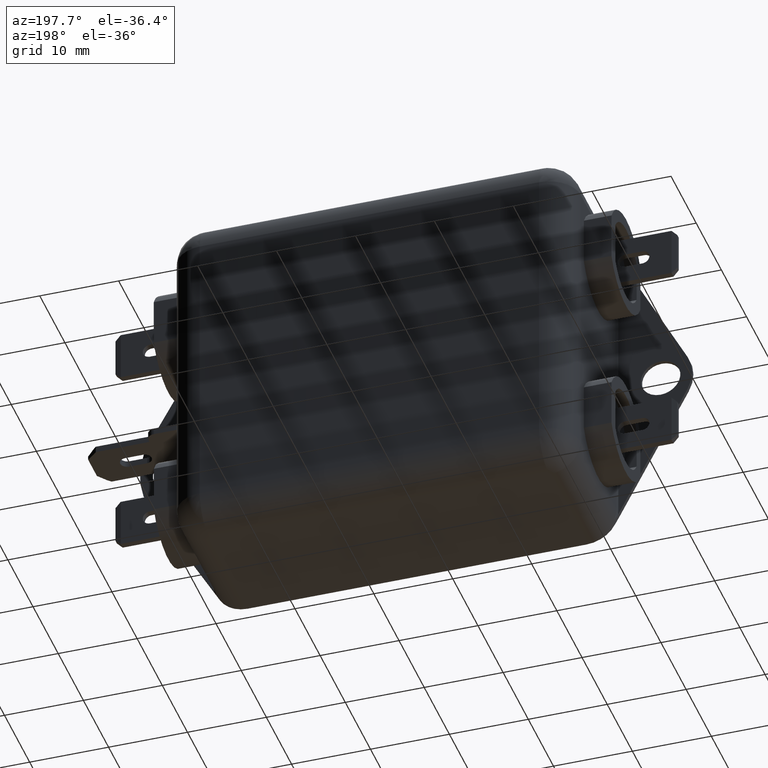
[diagram: clean part render]
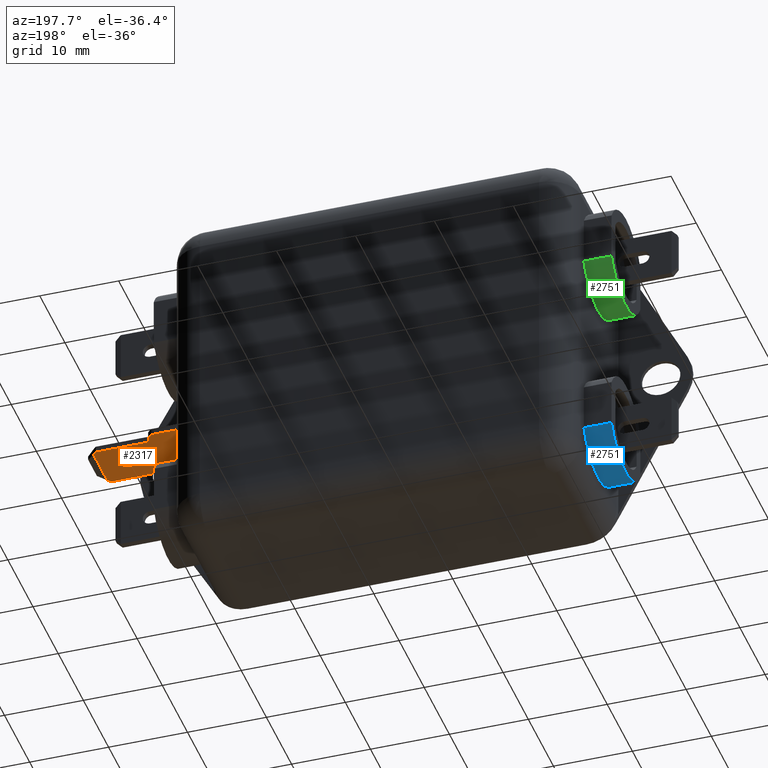
[diagram: same view with three faces highlighted in distinct colors, each labeled with its STEP entity id]
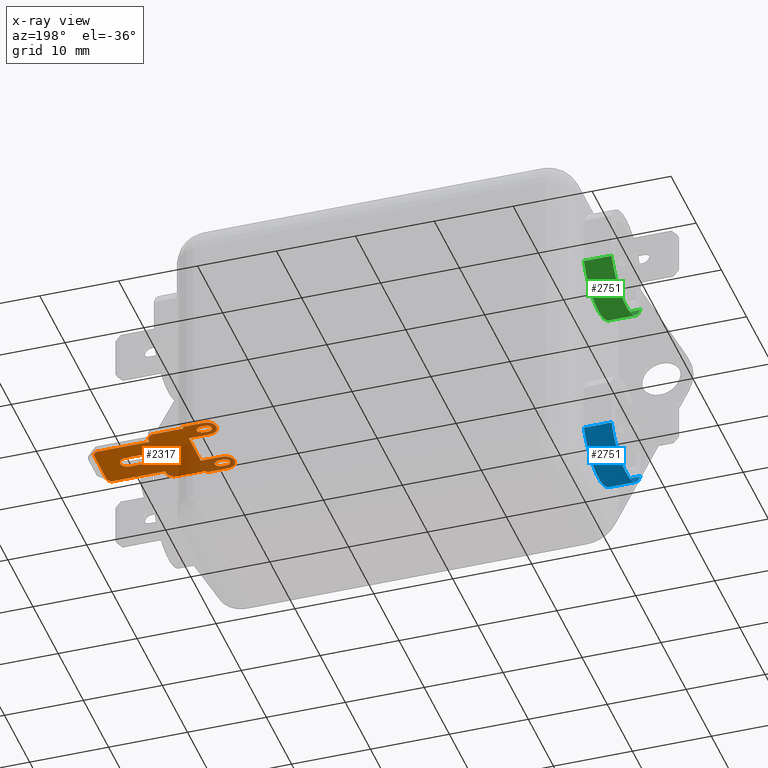
[diagram: x-ray of the same camera — body ghosted, the three highlighted faces saturated]
A machine part, auxiliary view with three faces highlighted in distinct colors.
The next image is the same camera in x-ray (body ghosted, the three faces saturated) — at least one of them is partly hidden behind the body in this view.
Their STEP definitions:

[orange] entity #2317 — the highlighted planar face has unit normal (0, 0, -1).
#2317=ADVANCED_FACE('NONE',(#5225,#5226,#5227,#5228),#5229,.T.);
#2323=EDGE_CURVE('NONE',#5237,#5238,#5239,.T.);
#2407=EDGE_CURVE('NONE',#5238,#5362,#5363,.T.);
#2413=EDGE_CURVE('NONE',#5367,#5370,#5371,.T.);
#2419=EDGE_CURVE('NONE',#5375,#5378,#5379,.T.);
#2423=EDGE_CURVE('NONE',#5383,#5384,#5385,.T.);
#2429=EDGE_CURVE('NONE',#5391,#5392,#5393,.T.);
#2435=EDGE_CURVE('NONE',#5399,#5400,#5401,.T.);
#2441=EDGE_CURVE('NONE',#5407,#5408,#5409,.T.);
#2447=EDGE_CURVE('NONE',#5415,#5416,#5417,.T.);
#2453=EDGE_CURVE('NONE',#5362,#5415,#5423,.T.);
#2455=EDGE_CURVE('NONE',#5416,#5391,#5425,.T.);
#2457=EDGE_CURVE('NONE',#5427,#5428,#5429,.T.);
#2463=EDGE_CURVE('NONE',#5378,#5427,#5435,.T.);
#2467=EDGE_CURVE('NONE',#5437,#5367,#5440,.T.);
#2469=EDGE_CURVE('NONE',#5442,#5437,#5443,.T.);
#2479=EDGE_CURVE('NONE',#5455,#5456,#5457,.T.);
#2485=EDGE_CURVE('NONE',#5463,#5442,#5464,.T.);
#2489=EDGE_CURVE('NONE',#5408,#5399,#5468,.T.);
#2491=EDGE_CURVE('NONE',#5470,#5407,#5471,.T.);
#2495=EDGE_CURVE('NONE',#5475,#5470,#5476,.T.);
#2499=EDGE_CURVE('NONE',#5480,#5475,#5481,.T.);
#2503=EDGE_CURVE('NONE',#5392,#5480,#5485,.T.);
#2511=EDGE_CURVE('NONE',#5495,#5496,#5497,.T.);
#2517=EDGE_CURVE('NONE',#5503,#5383,#5504,.T.);
#2521=EDGE_CURVE('NONE',#5508,#5509,#5510,.T.);
#2527=EDGE_CURVE('NONE',#5428,#5516,#5517,.T.);
#2531=EDGE_CURVE('NONE',#5370,#5463,#5521,.T.);
#2537=EDGE_CURVE('NONE',#5523,#5526,#5529,.T.);
#2539=EDGE_CURVE('NONE',#5496,#5455,#5531,.T.);
#2541=EDGE_CURVE('NONE',#5526,#5237,#5533,.T.);
#2543=EDGE_CURVE('NONE',#5456,#5503,#5535,.T.);
#2545=EDGE_CURVE('NONE',#5537,#5508,#5538,.T.);
#2549=EDGE_CURVE('NONE',#5542,#5537,#5543,.T.);
#2553=EDGE_CURVE('NONE',#5384,#5547,#5548,.T.);
#2559=EDGE_CURVE('NONE',#5509,#5552,#5555,.T.);
#2561=EDGE_CURVE('NONE',#5547,#5523,#5557,.T.);
#2563=EDGE_CURVE('NONE',#5516,#5375,#5559,.T.);
#2565=EDGE_CURVE('NONE',#5400,#5495,#5561,.T.);
#2567=EDGE_CURVE('NONE',#5552,#5542,#5563,.T.);
#5225=FACE_OUTER_BOUND('',#9181,.T.);
#5226=FACE_BOUND('',#9182,.T.);
#5227=FACE_BOUND('',#9183,.T.);
#5228=FACE_BOUND('',#9184,.T.);
#5229=PLANE('',#9185);
#5237=VERTEX_POINT('NONE',#9194);
#5238=VERTEX_POINT('NONE',#9195);
#5239=LINE('',#9196,#9197);
#5362=VERTEX_POINT('NONE',#9388);
#5363=LINE('',#9389,#9390);
#5367=VERTEX_POINT('NONE',#9397);
#5370=VERTEX_POINT('NONE',#9402);
#5371=CIRCLE('',#9403,0.6);
#5375=VERTEX_POINT('NONE',#9410);
#5378=VERTEX_POINT('NONE',#9415);
#5379=CIRCLE('',#9416,0.9);
#5383=VERTEX_POINT('NONE',#9423);
#5384=VERTEX_POINT('NONE',#9424);
#5385=LINE('',#9425,#9426);
#5391=VERTEX_POINT('NONE',#9437);
#5392=VERTEX_POINT('NONE',#9438);
#5393=LINE('',#9439,#9440);
#5399=VERTEX_POINT('NONE',#9451);
#5400=VERTEX_POINT('NONE',#9452);
#5401=CIRCLE('',#9453,1.2);
#5407=VERTEX_POINT('NONE',#9464);
#5408=VERTEX_POINT('NONE',#9465);
#5409=LINE('',#9466,#9467);
#5415=VERTEX_POINT('NONE',#9478);
#5416=VERTEX_POINT('NONE',#9479);
#5417=LINE('',#9480,#9481);
#5423=CIRCLE('',#9492,1.0);
#5425=LINE('',#9495,#9496);
#5427=VERTEX_POINT('NONE',#9499);
#5428=VERTEX_POINT('NONE',#9500);
#5429=CIRCLE('',#9501,0.9);
#5435=LINE('',#9512,#9513);
#5437=VERTEX_POINT('NONE',#9516);
#5440=CIRCLE('',#9521,0.6);
#5442=VERTEX_POINT('NONE',#9524);
#5443=LINE('',#9525,#9526);
#5455=VERTEX_POINT('NONE',#9547);
#5456=VERTEX_POINT('NONE',#9548);
#5457=LINE('',#9549,#9550);
#5463=VERTEX_POINT('NONE',#9561);
#5464=CIRCLE('',#9562,0.6);
#5468=LINE('',#9569,#9570);
#5470=VERTEX_POINT('NONE',#9573);
#5471=LINE('',#9574,#9575);
#5475=VERTEX_POINT('NONE',#9582);
#5476=CIRCLE('',#9583,1.200000033207);
#5480=VERTEX_POINT('NONE',#9590);
#5481=LINE('',#9591,#9592);
#5485=CIRCLE('',#9599,1.2);
#5495=VERTEX_POINT('NONE',#9616);
#5496=VERTEX_POINT('NONE',#9617);
#5497=CIRCLE('',#9618,1.2);
#5503=VERTEX_POINT('NONE',#9629);
#5504=CIRCLE('',#9630,1.0);
#5508=VERTEX_POINT('NONE',#9637);
#5509=VERTEX_POINT('NONE',#9638);
#5510=LINE('',#9639,#9640);
#5516=VERTEX_POINT('NONE',#9651);
#5517=LINE('',#9652,#9653);
#5521=LINE('',#9660,#9661);
#5523=VERTEX_POINT('NONE',#9664);
#5526=VERTEX_POINT('NONE',#9669);
#5529=LINE('',#9674,#9675);
#5531=LINE('',#9678,#9679);
#5533=LINE('',#9682,#9683);
#5535=LINE('',#9686,#9687);
#5537=VERTEX_POINT('NONE',#9690);
#5538=CIRCLE('',#9691,0.6);
#5542=VERTEX_POINT('NONE',#9698);
#5543=LINE('',#9699,#9700);
#5547=VERTEX_POINT('NONE',#9707);
#5548=LINE('',#9708,#9709);
#5552=VERTEX_POINT('NONE',#9716);
#5555=CIRCLE('',#9721,0.6);
#5557=LINE('',#9724,#9725);
#5559=CIRCLE('',#9728,0.9);
#5561=LINE('',#9731,#9732);
#5563=CIRCLE('',#9735,0.6);
#9181=EDGE_LOOP('',(#14323,#14324,#14325,#14326,#14327,#14328,#14329,#14330,#14331,#14332,#14333,#14334,#14335,#14336,#14337,#14338,#14339,#14340,#14341,#14342,#14343,#14344,#14345,#14346));
#9182=EDGE_LOOP('',(#14347,#14348,#14349,#14350,#14351));
#9183=EDGE_LOOP('',(#14352,#14353,#14354,#14355,#14356));
#9184=EDGE_LOOP('',(#14357,#14358,#14359,#14360,#14361));
#9185=AXIS2_PLACEMENT_3D('',#14362,#14363,#14364);
#9194=CARTESIAN_POINT('',(-4.1,3.15,0.0));
#9195=CARTESIAN_POINT('',(2.7,3.15,0.0));
#9196=CARTESIAN_POINT('',(-4.1,3.15,0.0));
#9197=VECTOR('',#14381,1.0);
#9388=CARTESIAN_POINT('',(2.7,3.5,0.0));
#9389=CARTESIAN_POINT('',(2.7,3.15,0.0));
#9390=VECTOR('',#14453,1.0);
#9397=CARTESIAN_POINT('',(8.85,-3.6,0.0));
#9402=CARTESIAN_POINT('',(9.45,-3.0,0.0));
#9403=AXIS2_PLACEMENT_3D('',#14456,#14457,#14458);
#9410=CARTESIAN_POINT('',(-2.0,0.0,0.0));
#9415=CARTESIAN_POINT('',(-1.1,0.9,0.0));
#9416=AXIS2_PLACEMENT_3D('',#14461,#14462,#14463);
#9423=CARTESIAN_POINT('',(2.7,-3.5,0.0));
#9424=CARTESIAN_POINT('',(2.7,-3.15,0.0));
#9425=CARTESIAN_POINT('',(2.7,-3.5,0.0));
#9426=VECTOR('',#14465,1.0);
#9437=CARTESIAN_POINT('',(7.45,4.85,0.0));
#9438=CARTESIAN_POINT('',(10.15,4.85,0.0));
#9439=CARTESIAN_POINT('',(7.45,4.85,0.0));
#9440=VECTOR('',#14468,1.0);
#9451=CARTESIAN_POINT('',(10.15,-2.4,0.0));
#9452=CARTESIAN_POINT('',(11.35,-3.6,0.0));
#9453=AXIS2_PLACEMENT_3D('',#14471,#14472,#14473);
#9464=CARTESIAN_POINT('',(7.45,2.399999966793,0.0));
#9465=CARTESIAN_POINT('',(7.45,-2.4,0.0));
#9466=CARTESIAN_POINT('',(7.45,2.399999966793,0.0));
#9467=VECTOR('',#14476,1.0);
#9478=CARTESIAN_POINT('',(3.7,4.5,0.0));
#9479=CARTESIAN_POINT('',(7.45,4.5,0.0));
#9480=CARTESIAN_POINT('',(3.7,4.5,0.0));
#9481=VECTOR('',#14479,1.0);
#9492=AXIS2_PLACEMENT_3D('',#14482,#14483,#14484);
#9495=CARTESIAN_POINT('',(7.45,4.5,0.0));
#9496=VECTOR('',#14485,1.0);
#9499=CARTESIAN_POINT('',(1.1,0.9,0.0));
#9500=CARTESIAN_POINT('',(1.1,-0.9,0.0));
#9501=AXIS2_PLACEMENT_3D('',#14486,#14487,#14488);
#9512=CARTESIAN_POINT('',(1.1,0.9,0.0));
#9513=VECTOR('',#14491,1.0);
#9516=CARTESIAN_POINT('',(9.45,-4.2,0.0));
#9521=AXIS2_PLACEMENT_3D('',#14493,#14494,#14495);
#9524=CARTESIAN_POINT('',(10.15,-4.2,0.0));
#9525=CARTESIAN_POINT('',(9.45,-4.2,0.0));
#9526=VECTOR('',#14496,1.0);
#9547=CARTESIAN_POINT('',(7.45,-4.85,0.0));
#9548=CARTESIAN_POINT('',(7.45,-4.5,0.0));
#9549=CARTESIAN_POINT('',(7.45,-4.85,0.0));
#9550=VECTOR('',#14501,1.0);
#9561=CARTESIAN_POINT('',(10.15,-3.0,0.0));
#9562=AXIS2_PLACEMENT_3D('',#14504,#14505,#14506);
#9569=CARTESIAN_POINT('',(7.45,-2.4,0.0));
#9570=VECTOR('',#14508,1.0);
#9573=CARTESIAN_POINT('',(10.149999966793,2.399999966793,0.0));
#9574=CARTESIAN_POINT('',(10.149999966793,2.399999966793,0.0));
#9575=VECTOR('',#14509,1.0);
#9582=CARTESIAN_POINT('',(11.35,3.6,0.0));
#9583=AXIS2_PLACEMENT_3D('',#14511,#14512,#14513);
#9590=CARTESIAN_POINT('',(11.35,3.65,0.0));
#9591=CARTESIAN_POINT('',(11.35,3.65,0.0));
#9592=VECTOR('',#14515,1.0);
#9599=AXIS2_PLACEMENT_3D('',#14517,#14518,#14519);
#9616=CARTESIAN_POINT('',(11.35,-3.65,0.0));
#9617=CARTESIAN_POINT('',(10.15,-4.85,0.0));
#9618=AXIS2_PLACEMENT_3D('',#14523,#14524,#14525);
#9629=CARTESIAN_POINT('',(3.7,-4.5,0.0));
#9630=AXIS2_PLACEMENT_3D('',#14528,#14529,#14530);
#9637=CARTESIAN_POINT('',(10.149999966793,3.0,0.0));
#9638=CARTESIAN_POINT('',(9.45,3.0,0.0));
#9639=CARTESIAN_POINT('',(9.45,3.0,0.0));
#9640=VECTOR('',#14532,1.0);
#9651=CARTESIAN_POINT('',(-1.1,-0.9,0.0));
#9652=CARTESIAN_POINT('',(-1.1,-0.9,0.0));
#9653=VECTOR('',#14535,1.0);
#9660=CARTESIAN_POINT('',(10.15,-3.0,0.0));
#9661=VECTOR('',#14537,1.0);
#9664=CARTESIAN_POINT('',(-4.51421356237308,-2.73578643762693,0.0));
#9669=CARTESIAN_POINT('',(-4.51421356237308,2.73578643762693,0.0));
#9674=CARTESIAN_POINT('',(-4.51421356237308,3.5,0.0));
#9675=VECTOR('',#14540,1.0);
#9678=CARTESIAN_POINT('',(10.15,-4.85,0.0));
#9679=VECTOR('',#14541,1.0);
#9682=CARTESIAN_POINT('',(-5.5142135623731,1.73578643762691,0.0));
#9683=VECTOR('',#14542,1.0);
#9686=CARTESIAN_POINT('',(7.45,-4.5,0.0));
#9687=VECTOR('',#14543,1.0);
#9690=CARTESIAN_POINT('',(10.149999966793,4.2,0.0));
#9691=AXIS2_PLACEMENT_3D('',#14544,#14545,#14546);
#9698=CARTESIAN_POINT('',(9.45,4.2,0.0));
#9699=CARTESIAN_POINT('',(10.149999966793,4.2,0.0));
#9700=VECTOR('',#14548,1.0);
#9707=CARTESIAN_POINT('',(-4.1,-3.15,0.0));
#9708=CARTESIAN_POINT('',(2.7,-3.15,0.0));
#9709=VECTOR('',#14550,1.0);
#9716=CARTESIAN_POINT('',(8.85,3.6,0.0));
#9721=AXIS2_PLACEMENT_3D('',#14553,#14554,#14555);
#9724=CARTESIAN_POINT('',(-4.1,-3.15,0.0));
#9725=VECTOR('',#14556,1.0);
#9728=AXIS2_PLACEMENT_3D('',#14557,#14558,#14559);
#9731=CARTESIAN_POINT('',(11.35,-3.6,0.0));
#9732=VECTOR('',#14560,1.0);
#9735=AXIS2_PLACEMENT_3D('',#14561,#14562,#14563);
#14323=ORIENTED_EDGE('',*,*,#2561,.T.);
#14324=ORIENTED_EDGE('',*,*,#2537,.T.);
#14325=ORIENTED_EDGE('',*,*,#2541,.T.);
#14326=ORIENTED_EDGE('',*,*,#2323,.T.);
#14327=ORIENTED_EDGE('',*,*,#2407,.T.);
#14328=ORIENTED_EDGE('',*,*,#2453,.T.);
#14329=ORIENTED_EDGE('',*,*,#2447,.T.);
#14330=ORIENTED_EDGE('',*,*,#2455,.T.);
#14331=ORIENTED_EDGE('',*,*,#2429,.T.);
#14332=ORIENTED_EDGE('',*,*,#2503,.T.);
#14333=ORIENTED_EDGE('',*,*,#2499,.T.);
#14334=ORIENTED_EDGE('',*,*,#2495,.T.);
#14335=ORIENTED_EDGE('',*,*,#2491,.T.);
#14336=ORIENTED_EDGE('',*,*,#2441,.T.);
#14337=ORIENTED_EDGE('',*,*,#2489,.T.);
#14338=ORIENTED_EDGE('',*,*,#2435,.T.);
#14339=ORIENTED_EDGE('',*,*,#2565,.T.);
#14340=ORIENTED_EDGE('',*,*,#2511,.T.);
#14341=ORIENTED_EDGE('',*,*,#2539,.T.);
#14342=ORIENTED_EDGE('',*,*,#2479,.T.);
#14343=ORIENTED_EDGE('',*,*,#2543,.T.);
#14344=ORIENTED_EDGE('',*,*,#2517,.T.);
#14345=ORIENTED_EDGE('',*,*,#2423,.T.);
#14346=ORIENTED_EDGE('',*,*,#2553,.T.);
#14347=ORIENTED_EDGE('',*,*,#2467,.F.);
#14348=ORIENTED_EDGE('',*,*,#2469,.F.);
#14349=ORIENTED_EDGE('',*,*,#2485,.F.);
#14350=ORIENTED_EDGE('',*,*,#2531,.F.);
#14351=ORIENTED_EDGE('',*,*,#2413,.F.);
#14352=ORIENTED_EDGE('',*,*,#2563,.F.);
#14353=ORIENTED_EDGE('',*,*,#2527,.F.);
#14354=ORIENTED_EDGE('',*,*,#2457,.F.);
#14355=ORIENTED_EDGE('',*,*,#2463,.F.);
#14356=ORIENTED_EDGE('',*,*,#2419,.F.);
#14357=ORIENTED_EDGE('',*,*,#2559,.F.);
#14358=ORIENTED_EDGE('',*,*,#2521,.F.);
#14359=ORIENTED_EDGE('',*,*,#2545,.F.);
#14360=ORIENTED_EDGE('',*,*,#2549,.F.);
#14361=ORIENTED_EDGE('',*,*,#2567,.F.);
#14362=CARTESIAN_POINT('',(3.7,3.5,0.0));
#14363=DIRECTION('',(0.0,0.0,-1.0));
#14364=DIRECTION('',(0.0,-1.0,0.0));
#14381=DIRECTION('',(1.0,0.0,0.0));
#14453=DIRECTION('',(0.0,1.0,0.0));
#14456=CARTESIAN_POINT('',(9.45,-3.6,0.0));
#14457=DIRECTION('',(0.0,0.0,-1.0));
#14458=DIRECTION('',(1.0,0.0,0.0));
#14461=CARTESIAN_POINT('',(-1.1,0.0,0.0));
#14462=DIRECTION('',(0.0,0.0,-1.0));
#14463=DIRECTION('',(1.0,0.0,0.0));
#14465=DIRECTION('',(0.0,1.0,0.0));
#14468=DIRECTION('',(1.0,0.0,0.0));
#14471=CARTESIAN_POINT('',(10.15,-3.6,0.0));
#14472=DIRECTION('',(0.0,0.0,-1.0));
#14473=DIRECTION('',(-1.0,0.0,0.0));
#14476=DIRECTION('',(0.0,-1.0,0.0));
#14479=DIRECTION('',(1.0,0.0,0.0));
#14482=CARTESIAN_POINT('',(3.7,3.5,0.0));
#14483=DIRECTION('',(0.0,0.0,-1.0));
#14484=DIRECTION('',(-1.0,0.0,0.0));
#14485=DIRECTION('',(0.0,1.0,0.0));
#14486=CARTESIAN_POINT('',(1.1,0.0,0.0));
#14487=DIRECTION('',(0.0,0.0,-1.0));
#14488=DIRECTION('',(1.0,0.0,0.0));
#14491=DIRECTION('',(1.0,0.0,0.0));
#14493=CARTESIAN_POINT('',(9.45,-3.6,0.0));
#14494=DIRECTION('',(0.0,0.0,-1.0));
#14495=DIRECTION('',(1.0,0.0,0.0));
#14496=DIRECTION('',(-1.0,-2.47817639425258E-015,0.0));
#14501=DIRECTION('',(0.0,1.0,0.0));
#14504=CARTESIAN_POINT('',(10.15,-3.6,0.0));
#14505=DIRECTION('',(0.0,0.0,-1.0));
#14506=DIRECTION('',(1.0,0.0,0.0));
#14508=DIRECTION('',(1.0,0.0,0.0));
#14509=DIRECTION('',(-1.0,0.0,0.0));
#14511=CARTESIAN_POINT('',(10.149999966793,3.6,0.0));
#14512=DIRECTION('',(0.0,0.0,-1.0));
#14513=DIRECTION('',(-1.0,0.0,0.0));
#14515=DIRECTION('',(0.0,-1.0,0.0));
#14517=CARTESIAN_POINT('',(10.15,3.65,0.0));
#14518=DIRECTION('',(0.0,0.0,-1.0));
#14519=DIRECTION('',(-1.0,0.0,0.0));
#14523=CARTESIAN_POINT('',(10.15,-3.65,0.0));
#14524=DIRECTION('',(0.0,0.0,-1.0));
#14525=DIRECTION('',(-1.0,0.0,0.0));
#14528=CARTESIAN_POINT('',(3.7,-3.5,0.0));
#14529=DIRECTION('',(0.0,0.0,-1.0));
#14530=DIRECTION('',(-1.0,0.0,0.0));
#14532=DIRECTION('',(-1.0,-1.23908825590687E-015,0.0));
#14535=DIRECTION('',(-1.0,9.85638338623186E-017,0.0));
#14537=DIRECTION('',(1.0,0.0,0.0));
#14540=DIRECTION('',(0.0,1.0,0.0));
#14541=DIRECTION('',(-1.0,0.0,0.0));
#14542=DIRECTION('',(0.70710678118655,0.707106781186545,0.0));
#14543=DIRECTION('',(-1.0,0.0,0.0));
#14544=CARTESIAN_POINT('',(10.149999966793,3.6,0.0));
#14545=DIRECTION('',(0.0,0.0,-1.0));
#14546=DIRECTION('',(1.0,0.0,0.0));
#14548=DIRECTION('',(1.0,0.0,0.0));
#14550=DIRECTION('',(-1.0,0.0,0.0));
#14553=CARTESIAN_POINT('',(9.45,3.6,0.0));
#14554=DIRECTION('',(0.0,0.0,-1.0));
#14555=DIRECTION('',(1.0,0.0,0.0));
#14556=DIRECTION('',(-0.70710678118655,0.707106781186545,0.0));
#14557=CARTESIAN_POINT('',(-1.1,0.0,0.0));
#14558=DIRECTION('',(0.0,0.0,-1.0));
#14559=DIRECTION('',(1.0,0.0,0.0));
#14560=DIRECTION('',(0.0,-1.0,0.0));
#14561=CARTESIAN_POINT('',(9.45,3.6,0.0));
#14562=DIRECTION('',(0.0,0.0,-1.0));
#14563=DIRECTION('',(1.0,0.0,0.0));

[blue] entity #2751 — the highlighted cylindrical surface (partial cylindrical patch) has radius 6.5 mm, axis along (-1, 0, 0).
#2751=ADVANCED_FACE('NONE',(#5820),#5821,.T.);
#2863=EDGE_CURVE('NONE',#5991,#5992,#5993,.T.);
#2865=EDGE_CURVE('NONE',#5991,#5995,#5996,.T.);
#2867=EDGE_CURVE('NONE',#5995,#5998,#5999,.T.);
#2869=EDGE_CURVE('NONE',#5992,#5998,#6001,.T.);
#5820=FACE_OUTER_BOUND('',#10106,.T.);
#5821=CYLINDRICAL_SURFACE('',#10107,6.5);
#5991=VERTEX_POINT('NONE',#10310);
#5992=VERTEX_POINT('NONE',#10311);
#5993=LINE('',#10312,#10313);
#5995=VERTEX_POINT('NONE',#10316);
#5996=CIRCLE('',#10317,6.5);
#5998=VERTEX_POINT('NONE',#10320);
#5999=LINE('',#10321,#10322);
#6001=CIRCLE('',#10325,6.5);
#10106=EDGE_LOOP('',(#14907,#14908,#14909,#14910));
#10107=AXIS2_PLACEMENT_3D('',#14911,#14912,#14913);
#10310=CARTESIAN_POINT('',(3.03108891324554,-5.75,0.0));
#10311=CARTESIAN_POINT('',(3.03108891324554,-5.75,3.5));
#10312=CARTESIAN_POINT('',(3.03108891324554,-5.75,0.0));
#10313=VECTOR('',#15276,1.0);
#10316=CARTESIAN_POINT('',(3.03108891324554,5.75,0.0));
#10317=AXIS2_PLACEMENT_3D('',#15277,#15278,#15279);
#10320=CARTESIAN_POINT('',(3.03108891324554,5.75,3.5));
#10321=CARTESIAN_POINT('',(3.03108891324554,5.75,0.0));
#10322=VECTOR('',#15280,1.0);
#10325=AXIS2_PLACEMENT_3D('',#15281,#15282,#15283);
#14907=ORIENTED_EDGE('',*,*,#2863,.F.);
#14908=ORIENTED_EDGE('',*,*,#2865,.T.);
#14909=ORIENTED_EDGE('',*,*,#2867,.T.);
#14910=ORIENTED_EDGE('',*,*,#2869,.F.);
#14911=CARTESIAN_POINT('',(0.0,0.0,3.5));
#14912=DIRECTION('',(0.0,0.0,-1.0));
#14913=DIRECTION('',(-1.0,0.0,0.0));
#15276=DIRECTION('',(0.0,0.0,1.0));
#15277=CARTESIAN_POINT('',(0.0,0.0,0.0));
#15278=DIRECTION('',(0.0,0.0,1.0));
#15279=DIRECTION('',(1.0,0.0,0.0));
#15280=DIRECTION('',(0.0,0.0,1.0));
#15281=CARTESIAN_POINT('',(0.0,0.0,3.5));
#15282=DIRECTION('',(0.0,0.0,1.0));
#15283=DIRECTION('',(1.0,0.0,0.0));

[green] entity #2751 — the highlighted cylindrical surface (partial cylindrical patch) has radius 6.5 mm, axis along (-1, 0, 0).
#2751=ADVANCED_FACE('NONE',(#5820),#5821,.T.);
#2863=EDGE_CURVE('NONE',#5991,#5992,#5993,.T.);
#2865=EDGE_CURVE('NONE',#5991,#5995,#5996,.T.);
#2867=EDGE_CURVE('NONE',#5995,#5998,#5999,.T.);
#2869=EDGE_CURVE('NONE',#5992,#5998,#6001,.T.);
#5820=FACE_OUTER_BOUND('',#10106,.T.);
#5821=CYLINDRICAL_SURFACE('',#10107,6.5);
#5991=VERTEX_POINT('NONE',#10310);
#5992=VERTEX_POINT('NONE',#10311);
#5993=LINE('',#10312,#10313);
#5995=VERTEX_POINT('NONE',#10316);
#5996=CIRCLE('',#10317,6.5);
#5998=VERTEX_POINT('NONE',#10320);
#5999=LINE('',#10321,#10322);
#6001=CIRCLE('',#10325,6.5);
#10106=EDGE_LOOP('',(#14907,#14908,#14909,#14910));
#10107=AXIS2_PLACEMENT_3D('',#14911,#14912,#14913);
#10310=CARTESIAN_POINT('',(3.03108891324554,-5.75,0.0));
#10311=CARTESIAN_POINT('',(3.03108891324554,-5.75,3.5));
#10312=CARTESIAN_POINT('',(3.03108891324554,-5.75,0.0));
#10313=VECTOR('',#15276,1.0);
#10316=CARTESIAN_POINT('',(3.03108891324554,5.75,0.0));
#10317=AXIS2_PLACEMENT_3D('',#15277,#15278,#15279);
#10320=CARTESIAN_POINT('',(3.03108891324554,5.75,3.5));
#10321=CARTESIAN_POINT('',(3.03108891324554,5.75,0.0));
#10322=VECTOR('',#15280,1.0);
#10325=AXIS2_PLACEMENT_3D('',#15281,#15282,#15283);
#14907=ORIENTED_EDGE('',*,*,#2863,.F.);
#14908=ORIENTED_EDGE('',*,*,#2865,.T.);
#14909=ORIENTED_EDGE('',*,*,#2867,.T.);
#14910=ORIENTED_EDGE('',*,*,#2869,.F.);
#14911=CARTESIAN_POINT('',(0.0,0.0,3.5));
#14912=DIRECTION('',(0.0,0.0,-1.0));
#14913=DIRECTION('',(-1.0,0.0,0.0));
#15276=DIRECTION('',(0.0,0.0,1.0));
#15277=CARTESIAN_POINT('',(0.0,0.0,0.0));
#15278=DIRECTION('',(0.0,0.0,1.0));
#15279=DIRECTION('',(1.0,0.0,0.0));
#15280=DIRECTION('',(0.0,0.0,1.0));
#15281=CARTESIAN_POINT('',(0.0,0.0,3.5));
#15282=DIRECTION('',(0.0,0.0,1.0));
#15283=DIRECTION('',(1.0,0.0,0.0));